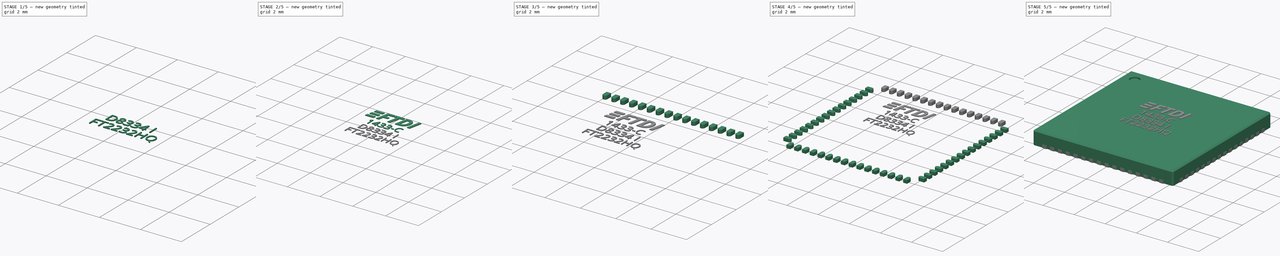
[diagram: build sequence overview — one tinted view per stage of 5, left to right]
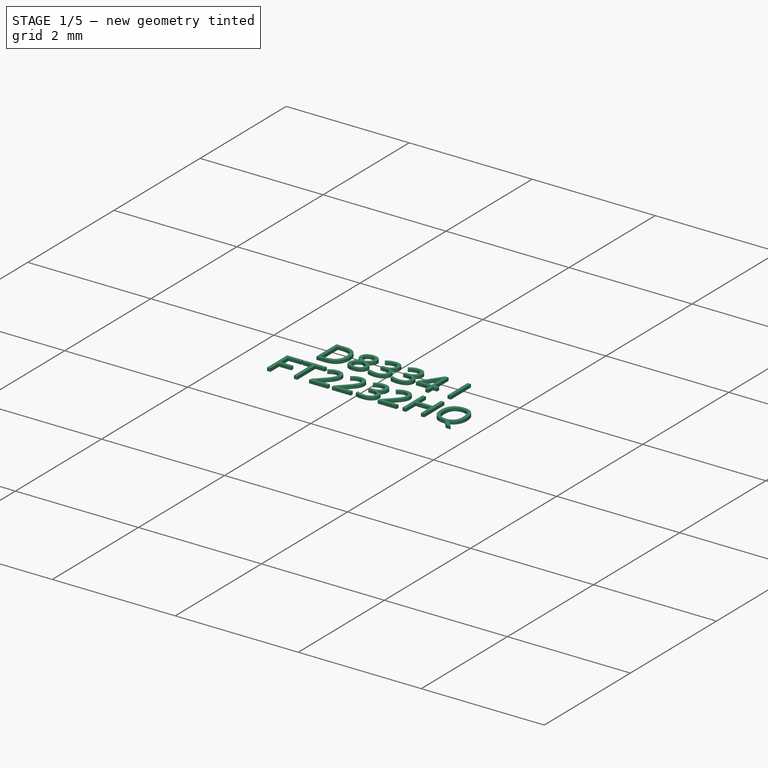
[diagram: stage 1 of 5 — iso view after this stage's code; geometry added in this stage tinted green]
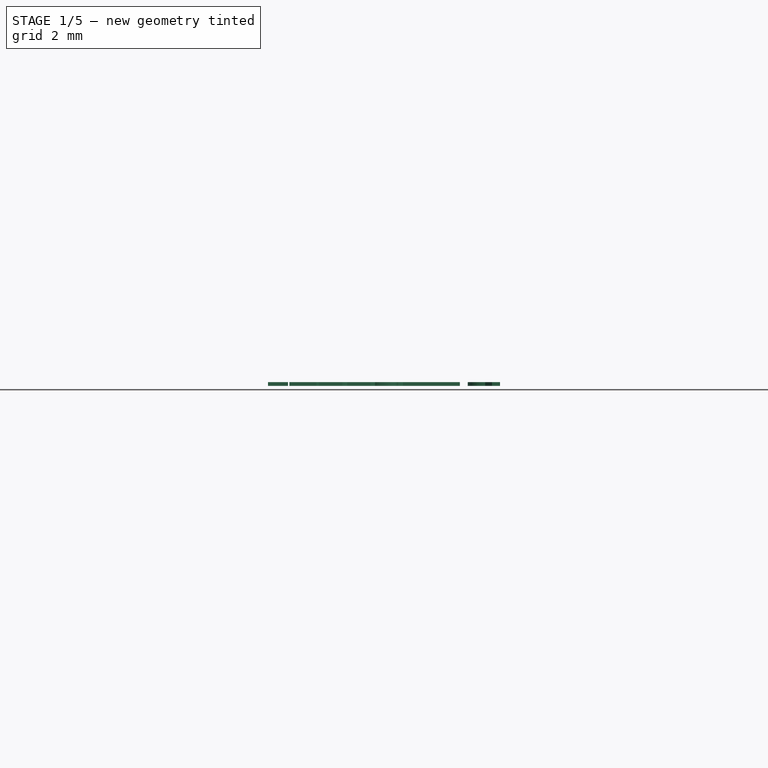
[diagram: stage 1 of 5 — front view after this stage's code; geometry added in this stage tinted green]
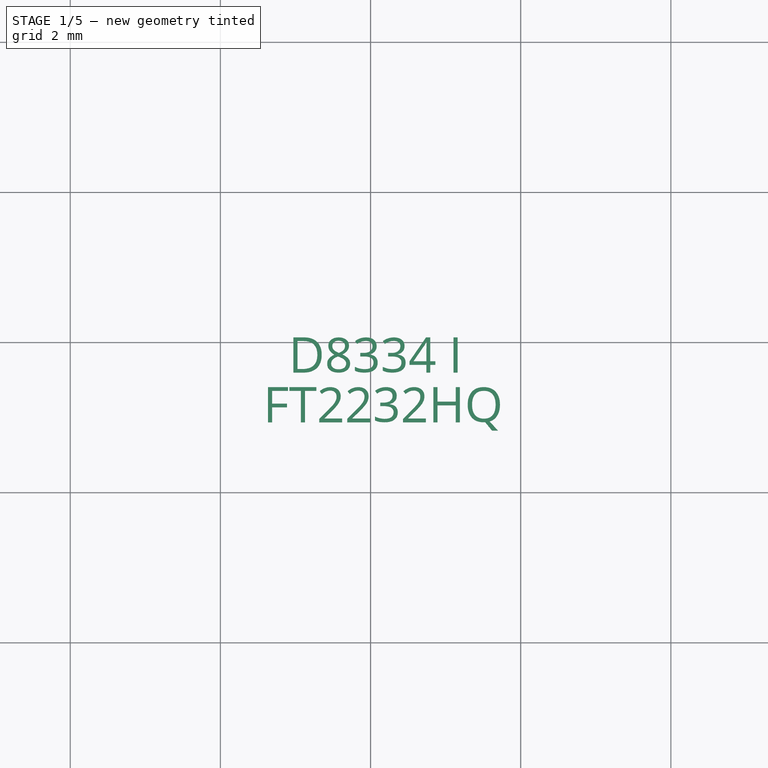
[diagram: stage 1 of 5 — top view after this stage's code; geometry added in this stage tinted green]
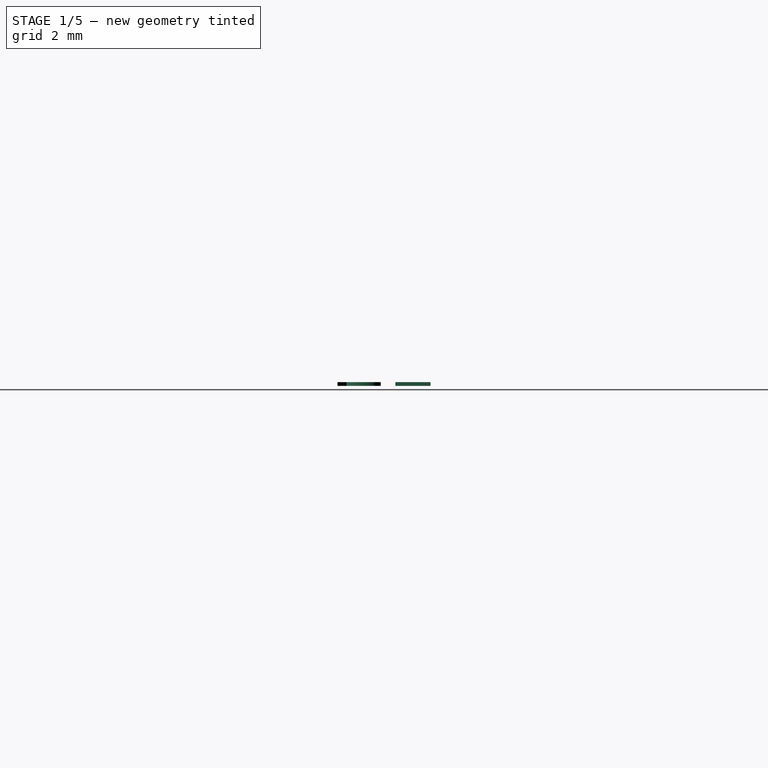
[diagram: stage 1 of 5 — right view after this stage's code; geometry added in this stage tinted green]
FCSTD DOCUMENT  (FreeCAD 0.16R6703 (Git))
Label: FTDI-QFN-64
License: All rights reserved
LicenseURL: http://en.wikipedia.org/wiki/All_rights_reserved
objects: Part::FeaturePython×9, App::DocumentObjectGroup×4, Part::Part2DObjectPython×4, Part::Extrusion×4, Sketcher::SketchObject×3, PartDesign::Pad×2, Part::Mirroring×2, Part::MultiFuse×2, Part::Box×1, Part::Chamfer×1, PartDesign::Pocket×1
note: 32 computed .brp shape members not serialized (recipe doc carries the construction recipe); baked Part::Feature solids carry a one-line shape summary decoded from their .brp

FEATURE [Part::Extrusion] Extrude002  label="line-3"
  Base = -> ShapeString002
  Dir = (0,0,0.05)
  Solid = true
FEATURE [Part::Extrusion] Extrude003  label="line-4"
  Base = -> ShapeString003
  Dir = (0,0,0.05)
  Solid = true
FEATURE [Part::FeaturePython] Clone005  label="text-line3"  # Draft clone (typed FeaturePython)
  Objects = -> [Extrude002]
  Scale = (1,1,1)
FEATURE [Part::FeaturePython] Clone006  label="text-line4"  # Draft clone (typed FeaturePython)
  Objects = -> [Extrude003]
  Scale = (1,1,1)
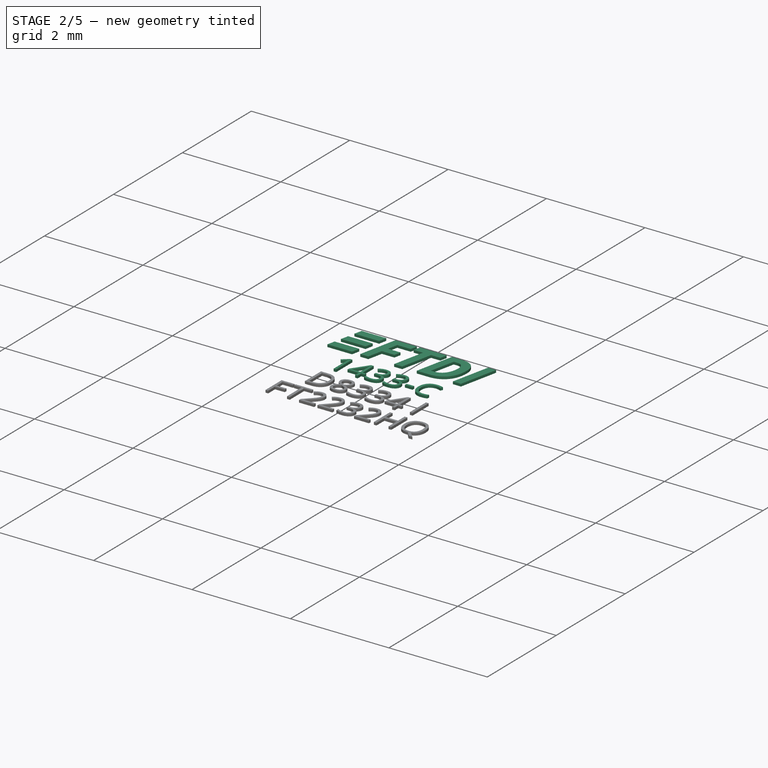
[diagram: stage 2 of 5 — iso view after this stage's code; geometry added in this stage tinted green]
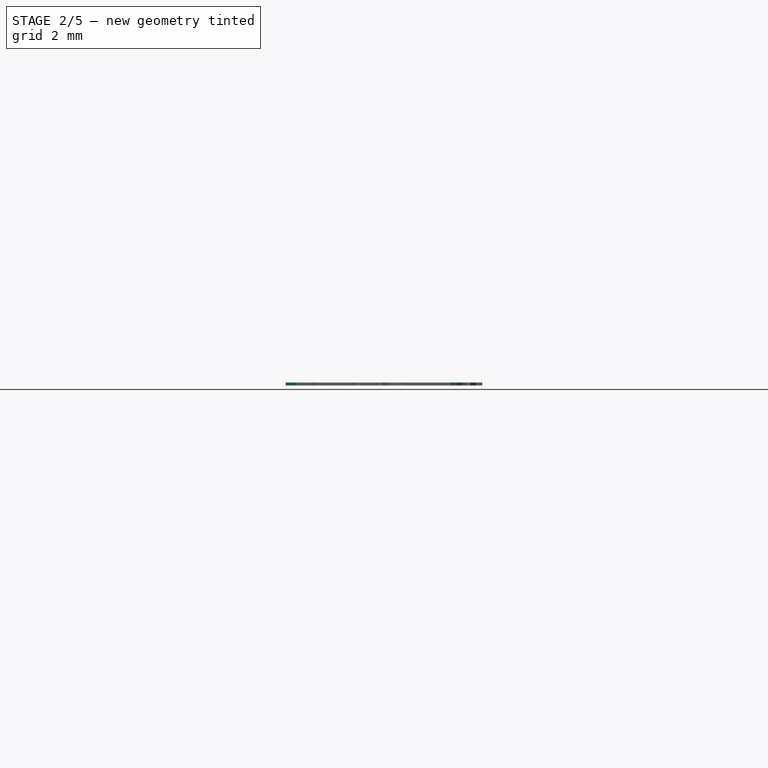
[diagram: stage 2 of 5 — front view after this stage's code; geometry added in this stage tinted green]
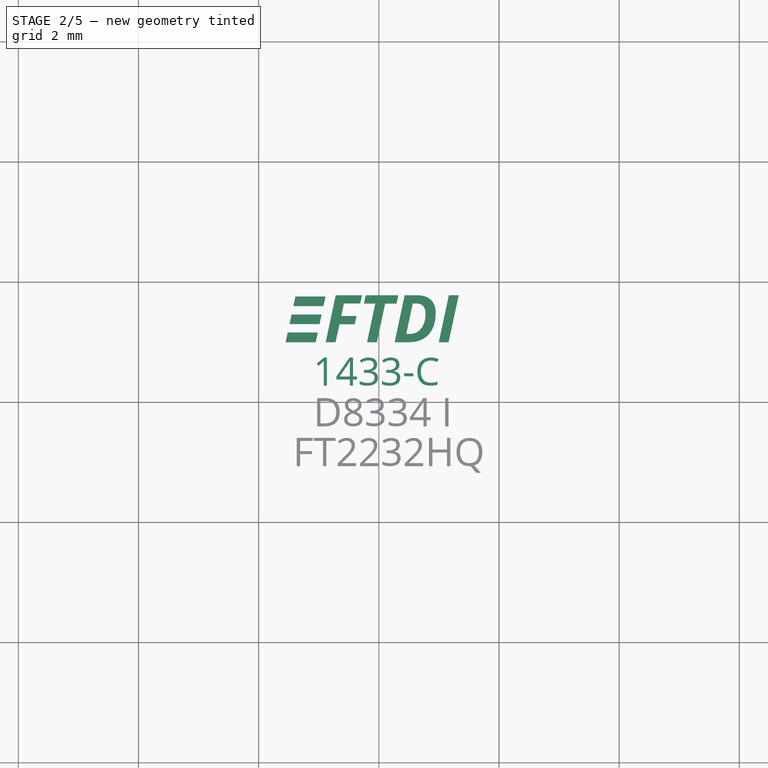
[diagram: stage 2 of 5 — top view after this stage's code; geometry added in this stage tinted green]
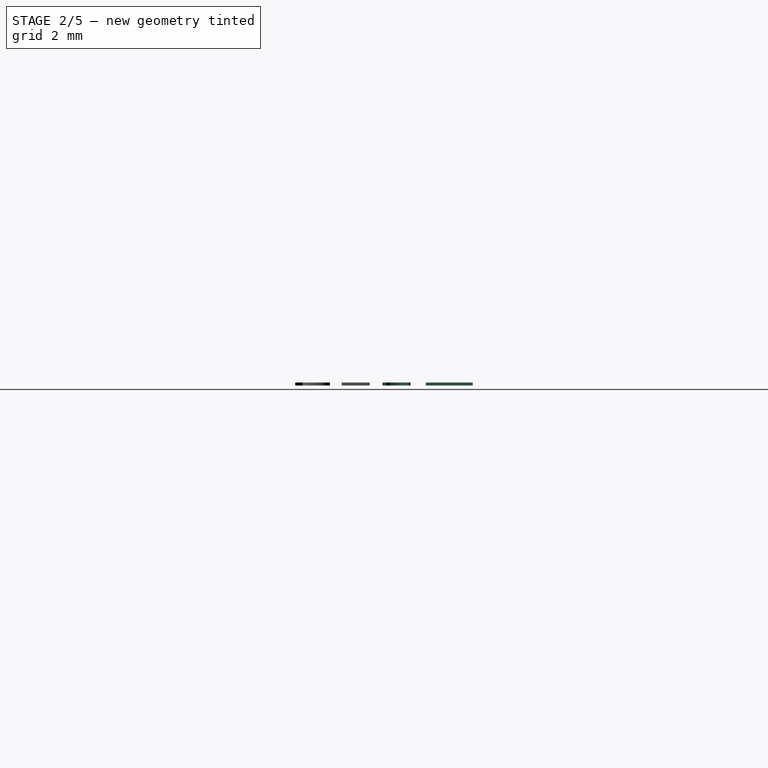
[diagram: stage 2 of 5 — right view after this stage's code; geometry added in this stage tinted green]
FEATURE [Part::Part2DObjectPython] ShapeString  # Draft 2D object (typed FeaturePython)
  FontFile = <userpath>/develop/icezum/src-kicad/packages3d/develop/Open_Sans/OpenSans-BoldItalic.ttf
  Placement = pos=(-2.04393,-0.0134358,0.935001) rot=(0,0,1;0rad)
  Size = 1
  String = FTDI
  Tracking = 0
FEATURE [Part::Extrusion] Extrude  label="ftdi-text"
  Base = -> ShapeString
  Dir = (0,0,0.05)
  Solid = true
FEATURE [Sketcher::SketchObject] Sketch002
  Placement = pos=(-2.68235,-0.0134358,0.935001) rot=(0,0,1;0rad)
  sketch-geometry (15):
    g0: LineSegment [constr] StartX=0 StartY=0 StartZ=0 EndX=0.128629 EndY=0.6 EndZ=0
    g1: LineSegment StartX=0.128629 StartY=0.6 StartZ=0 EndX=0.628629 EndY=0.6 EndZ=0
    g2: LineSegment StartX=0.628629 StartY=0.6 StartZ=0 EndX=0.66293 EndY=0.76 EndZ=0
    g3: LineSegment StartX=0.66293 StartY=0.76 StartZ=0 EndX=0.16293 EndY=0.76 EndZ=0
    g4: LineSegment StartX=0.16293 StartY=0.76 StartZ=0 EndX=0.128629 EndY=0.6 EndZ=0
    g5: LineSegment StartX=0.0986155 StartY=0.46 StartZ=0 EndX=0.598615 EndY=0.46 EndZ=0
    g6: LineSegment StartX=0.598615 StartY=0.46 StartZ=0 EndX=0.564314 EndY=0.3 EndZ=0
    g7: LineSegment StartX=0.564314 StartY=0.3 StartZ=0 EndX=0.0643144 EndY=0.3 EndZ=0
    g8: LineSegment StartX=0.0643144 StartY=0.3 StartZ=0 EndX=0.0986155 EndY=0.46 EndZ=0
    g9: LineSegment StartX=0.034301 StartY=0.16 StartZ=0 EndX=0.534301 EndY=0.16 EndZ=0
    g10: LineSegment StartX=0.534301 StartY=0.16 StartZ=0 EndX=0.5 EndY=0 EndZ=0
    g11: LineSegment StartX=0.5 StartY=0 StartZ=0 EndX=0 EndY=0 EndZ=0
    g12: LineSegment StartX=0 StartY=0 StartZ=0 EndX=0.034301 EndY=0.16 EndZ=0
    g13: LineSegment [constr] StartX=0.128629 StartY=0.6 StartZ=0 EndX=0.128629 EndY=0.46 EndZ=0
    g14: LineSegment [constr] StartX=0.0643144 StartY=0.3 StartZ=0 EndX=0.0643144 EndY=0.16 EndZ=0
  constraints (47):
    c: PointOnObject(g0,g-1)
    c: Angle(g0,g-1) = 1.78198
    c: Horizontal(g1)
    c: Coincident(g1,g2)
    c: Coincident(g2,g3)
    c: Horizontal(g3)
    c: Coincident(g3,g4)
    c: Coincident(g4,g1)
    c: Parallel(g4,g2)
    c: Parallel(g2,g0)
    c: Equal(g1,g3)
    c: DistanceX(g1,g1) = 0.5
    c: DistanceY(g1,g2) = 0.16
    c: Coincident(g0,g-1)
    c: Coincident(g1,g0)
    c: DistanceY(g-1,g3) = 0.76
    c: Horizontal(g5)
    c: Coincident(g5,g6)
    c: Coincident(g6,g7)
    c: Horizontal(g7)
    c: Coincident(g7,g8)
    c: Coincident(g8,g5)
    c: Parallel(g8,g6)
    c: Parallel(g6,g0)
    c: PointOnObject(g5,g0)
    c: Equal(g2,g6)
    c: Equal(g1,g5)
    c: Horizontal(g9)
    c: Coincident(g9,g10)
    c: PointOnObject(g10,g-1)
    c: Coincident(g10,g11)
    c: Horizontal(g11)
    c: Coincident(g11,g12)
    c: Coincident(g12,g9)
    c: Parallel(g12,g10)
    c: Parallel(g10,g0)
    c: Coincident(g11,g-1)
    c: Equal(g9,g7)
    c: Equal(g10,g6)
    c: Vertical(g13)
    c: Coincident(g13,g0)
    c: PointOnObject(g13,g5)
    c: PointOnObject(g14,g7)
    c: Vertical(g14)
    c: PointOnObject(g14,g9)
    c: Equal(g13,g14)
    c: PointOnObject(g14,g0)
FEATURE [PartDesign::Pad] Pad001  label="ftdi-logo"
  Length = 0.05
  Length2 = 100
  Placement = pos=(-2.68235,-0.0134358,0.935001) rot=(0,0,1;0rad)
  Sketch = -> Sketch002
  Type = 0
FEATURE [Part::MultiFuse] Fusion001  label="ftdi"
  Placement = pos=(1.13168,1.01405,0) rot=(0,0,1;0rad)
  Shapes = -> [Extrude,Pad001]
FEATURE [Part::Part2DObjectPython] ShapeString001  # Draft 2D object (typed FeaturePython)
  FontFile = <userpath>/develop/icezum/src-kicad/packages3d/develop/Open_Sans/OpenSans-Regular.ttf
  Placement = pos=(-1.09226,0.276688,0.935001) rot=(0,0,1;0rad)
  Size = 0.6
  String = 1433-C
  Tracking = 0
FEATURE [Part::Part2DObjectPython] ShapeString002  # Draft 2D object (typed FeaturePython)
  FontFile = <userpath>/develop/icezum/src-kicad/packages3d/develop/Open_Sans/OpenSans-Regular.ttf
  Placement = pos=(-1.09226,-0.400051,0.935001) rot=(0,0,1;0rad)
  Size = 0.6
  String = D8334 I
  Tracking = 0
FEATURE [Part::Part2DObjectPython] ShapeString003  # Draft 2D object (typed FeaturePython)
  FontFile = <userpath>/develop/icezum/src-kicad/packages3d/develop/Open_Sans/OpenSans-Regular.ttf
  Placement = pos=(-1.43063,-1.06208,0.935001) rot=(0,0,1;0rad)
  Size = 0.6
  String = FT2232HQ
  Tracking = 0
FEATURE [Part::Extrusion] Extrude001  label="line-2"
  Base = -> ShapeString001
  Dir = (0,0,0.05)
  Solid = true
FEATURE [App::DocumentObjectGroup] Group003  label="text-src"
  Group = -> [Fusion001,Extrude001,Extrude002,Extrude003]
FEATURE [App::DocumentObjectGroup] Group  label="src"
  Group = -> [Group001,Group002,Group003]
FEATURE [Part::FeaturePython] Clone004  label="text-line2"  # Draft clone (typed FeaturePython)
  Objects = -> [Extrude001]
  Scale = (1,1,1)
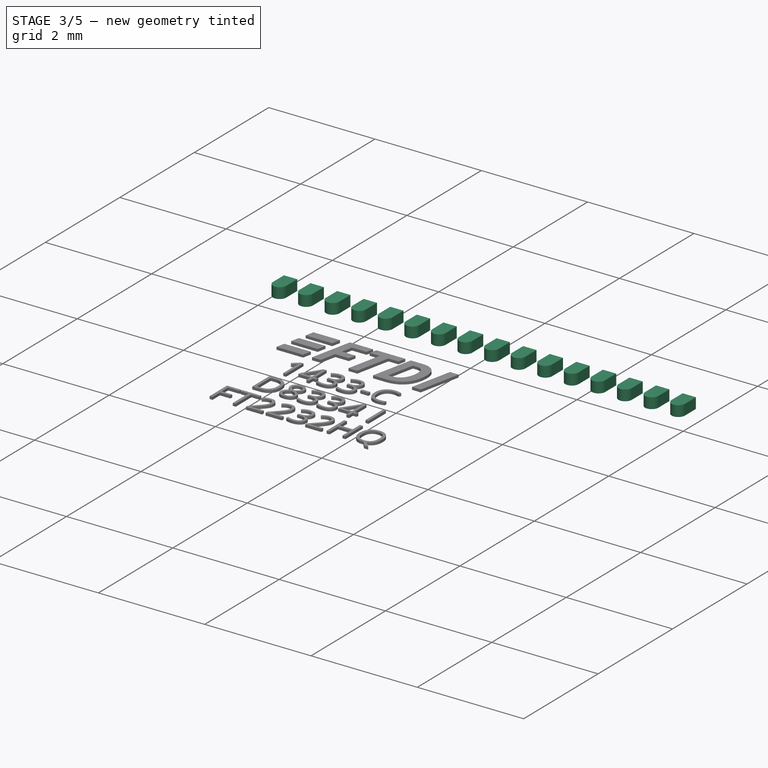
[diagram: stage 3 of 5 — iso view after this stage's code; geometry added in this stage tinted green]
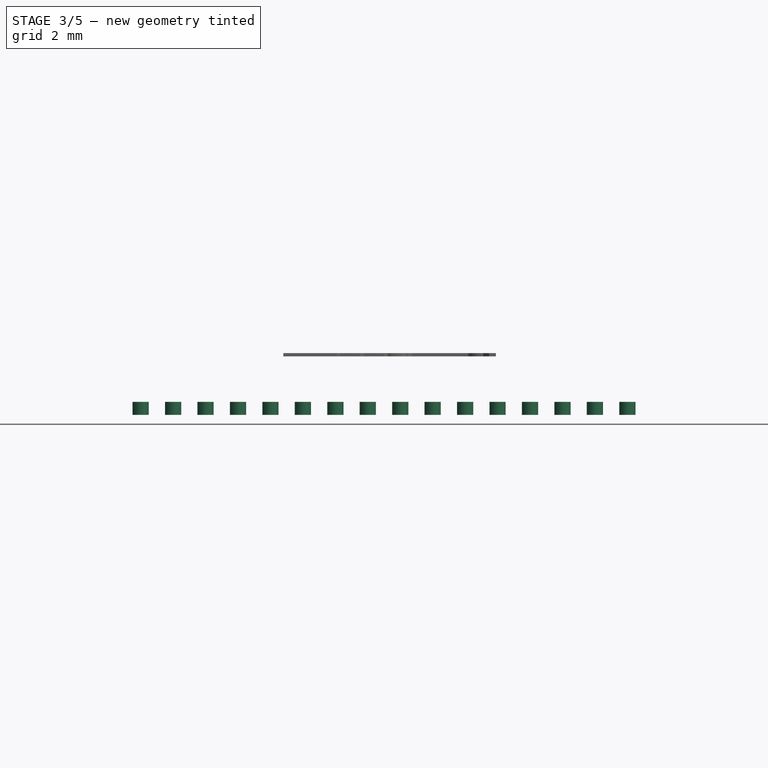
[diagram: stage 3 of 5 — front view after this stage's code; geometry added in this stage tinted green]
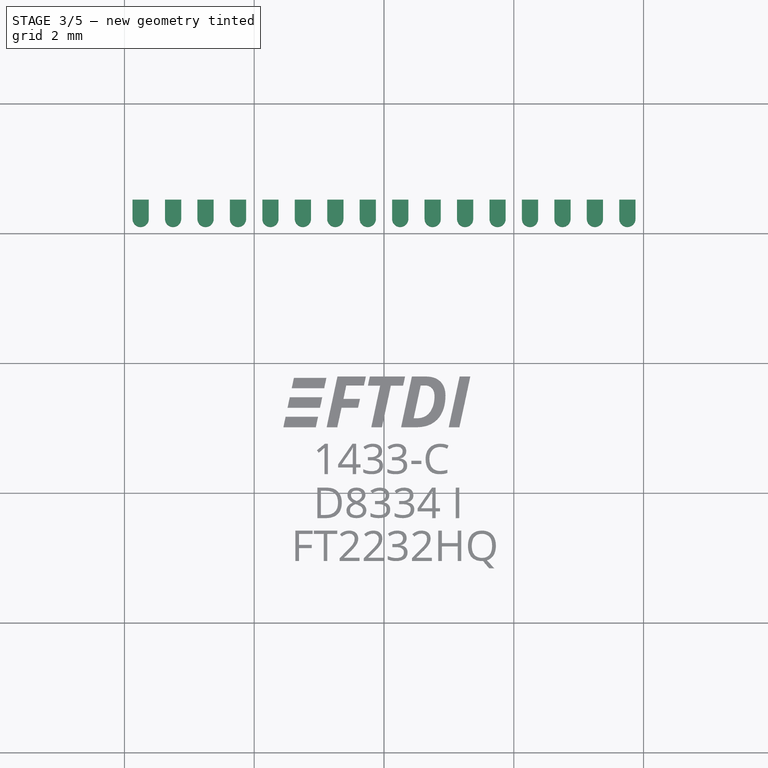
[diagram: stage 3 of 5 — top view after this stage's code; geometry added in this stage tinted green]
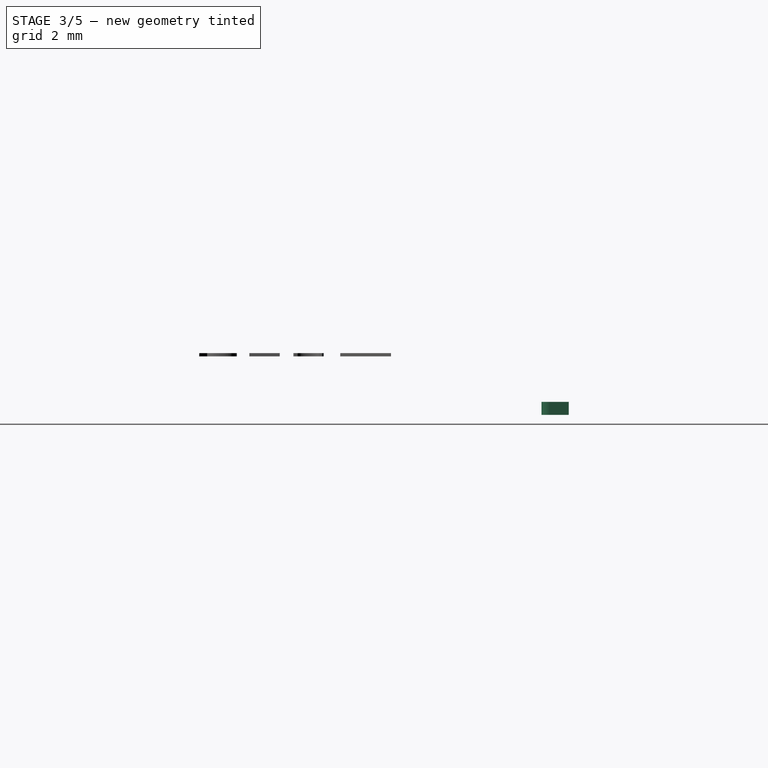
[diagram: stage 3 of 5 — right view after this stage's code; geometry added in this stage tinted green]
FEATURE [Sketcher::SketchObject] Sketch001
  Placement = pos=(4.52,-3.625,0.0350014) rot=(0,0,1;0rad)
  sketch-geometry (5):
    g0: LineSegment StartX=0 StartY=0 StartZ=0 EndX=-0.295 EndY=0 EndZ=0
    g1: LineSegment [constr] StartX=-0.295 StartY=0 StartZ=0 EndX=-0.295 EndY=-0.25 EndZ=0
    g2: LineSegment StartX=-0.295 StartY=-0.25 StartZ=0 EndX=0 EndY=-0.25 EndZ=0
    g3: LineSegment StartX=0 StartY=-0.25 StartZ=0 EndX=0 EndY=0 EndZ=0
    g4: ArcOfCircle CenterX=-0.295 CenterY=-0.125 CenterZ=0 NormalX=0 NormalY=0 NormalZ=1 Radius=0.125 StartAngle=1.5708 EndAngle=4.71239
  constraints (14):
    c: Coincident(g0,g1)
    c: Coincident(g1,g2)
    c: Coincident(g2,g3)
    c: Coincident(g3,g0)
    c: Horizontal(g0)
    c: Horizontal(g2)
    c: Vertical(g1)
    c: Vertical(g3)
    c: PointOnObject(g4,g1)
    c: Coincident(g4,g1)
    c: Coincident(g4,g0)
    c: Coincident(g0,g-1)
    c: DistanceY(g3,g3) = 0.25
    c: DistanceX(g2,g2) = 0.295
FEATURE [PartDesign::Pad] Pad  label="Pad-src"
  Length = 0.2
  Length2 = 100
  Placement = pos=(4.52,-3.625,0.0350014) rot=(0,0,1;0rad)
  Sketch = -> Sketch001
  Type = 0
FEATURE [Part::FeaturePython] Clone001  label="padh"  # Draft clone (typed FeaturePython)
  Objects = -> [Pad]
  Placement = pos=(-3.875,4.52,0.035001) rot=(0,0,1;1.5708rad)
  Scale = (1,1,1)
FEATURE [Part::FeaturePython] Array001  label="pads-top"  # Draft array (typed FeaturePython)
  Angle = 360
  ArrayType = 0
  Axis = (0,0,1)
  Base = -> Clone001
  Center = (0,0,0)
  Fuse = false
  IntervalAxis = (0,0,0)
  IntervalX = (0.5,0,0)
  IntervalY = (0,1,0)
  IntervalZ = (0,0,0)
  NumberPolar = 1
  NumberX = 16
  NumberY = 1
  NumberZ = 1
FEATURE [Part::FeaturePython] Clone003  label="text-ftdi"  # Draft clone (typed FeaturePython)
  Objects = -> [Fusion001]
  Placement = pos=(1.13168,1.01405,0) rot=(0,0,1;0rad)
  Scale = (1,1,1)
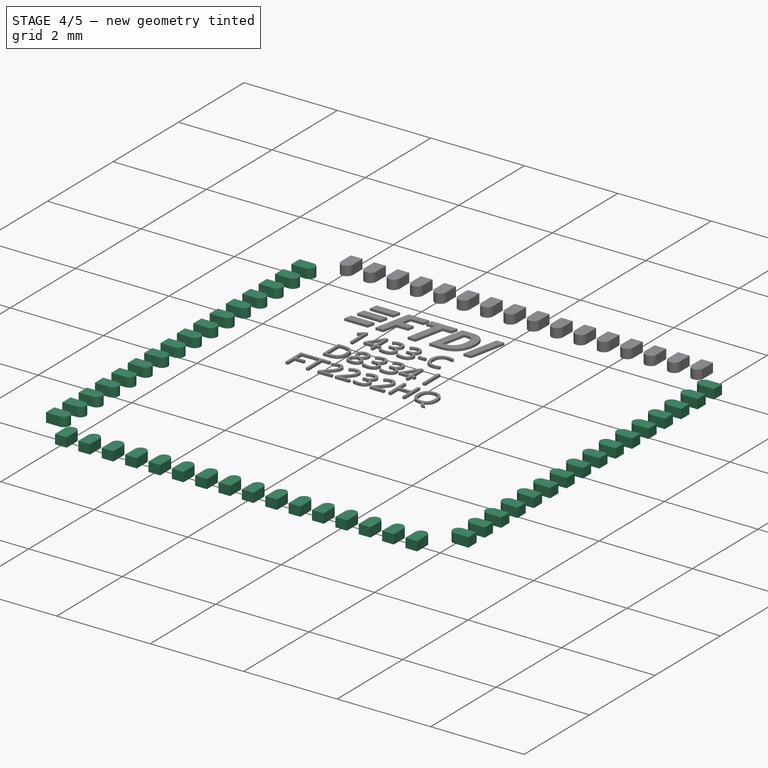
[diagram: stage 4 of 5 — iso view after this stage's code; geometry added in this stage tinted green]
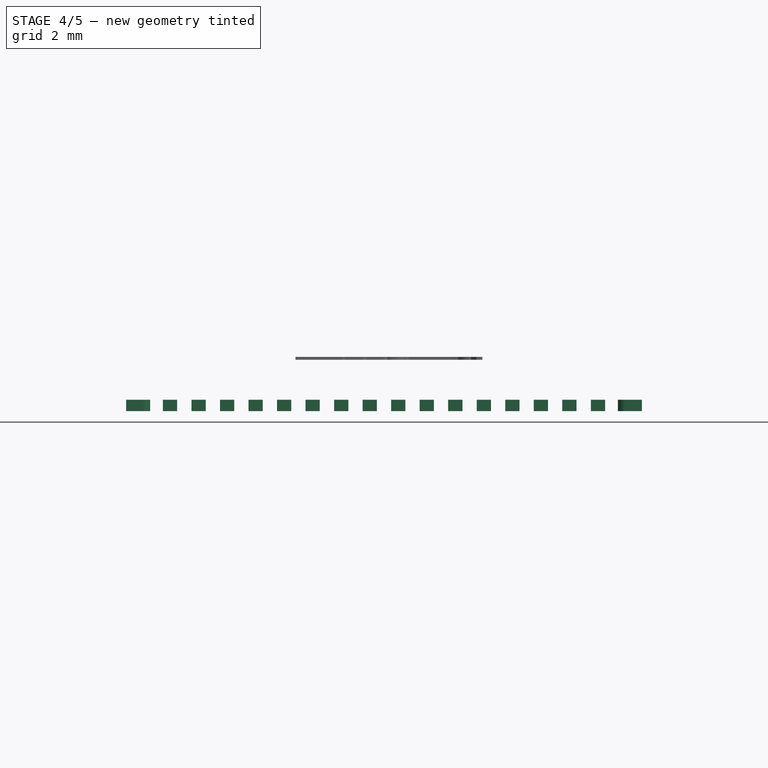
[diagram: stage 4 of 5 — front view after this stage's code; geometry added in this stage tinted green]
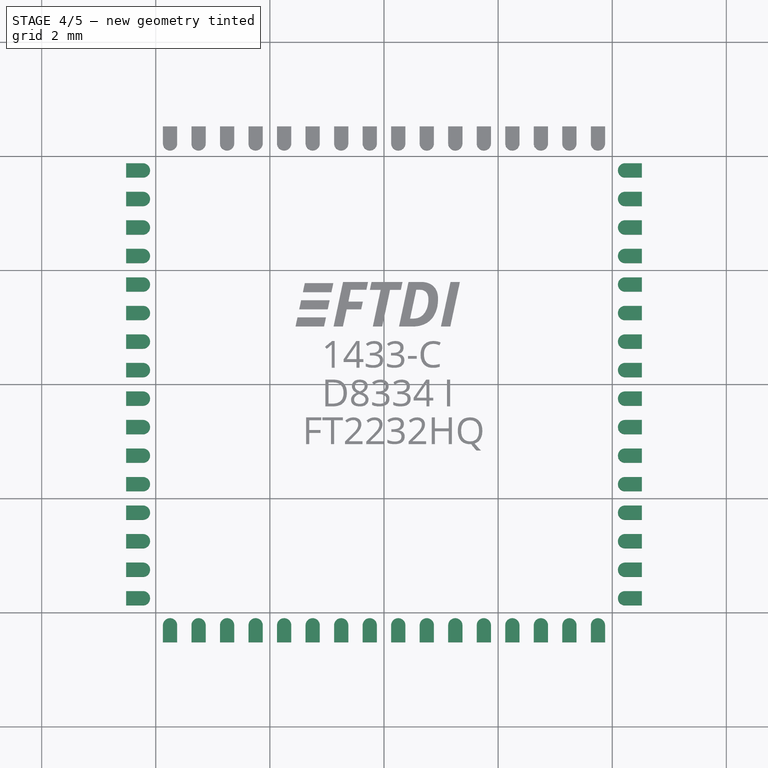
[diagram: stage 4 of 5 — top view after this stage's code; geometry added in this stage tinted green]
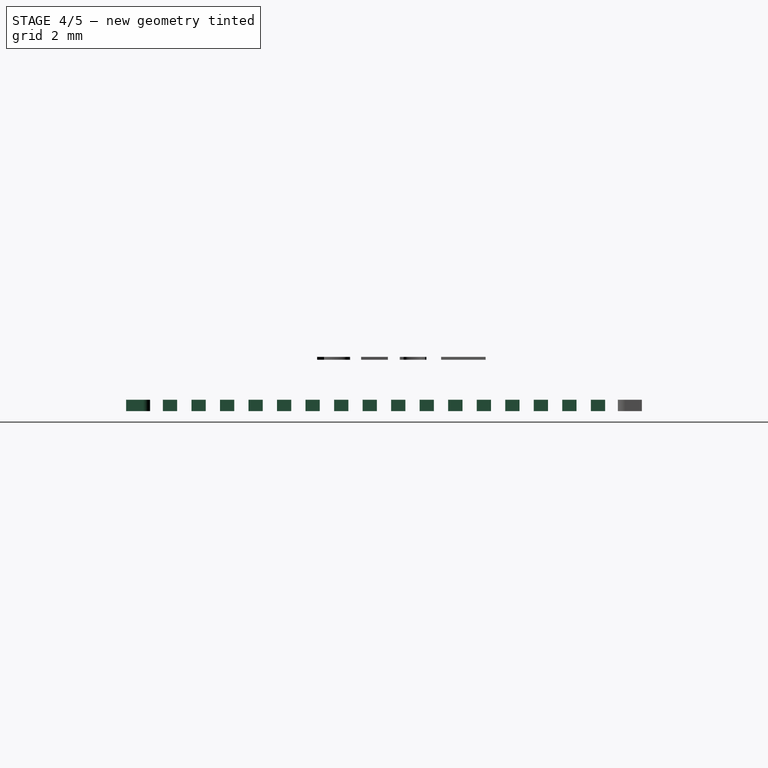
[diagram: stage 4 of 5 — right view after this stage's code; geometry added in this stage tinted green]
FEATURE [Part::FeaturePython] Array  label="pads-right"  # Draft array (typed FeaturePython)
  Angle = 360
  ArrayType = 0
  Axis = (0,0,1)
  Base = -> Pad
  Center = (0,0,0)
  Fuse = false
  IntervalAxis = (0,0,0)
  IntervalX = (1,0,0)
  IntervalY = (0,0.5,0)
  IntervalZ = (0,0,0)
  NumberPolar = 1
  NumberX = 1
  NumberY = 16
  NumberZ = 1
FEATURE [Part::Mirroring] Part__Mirroring  label="pads-right (Mirror #1)"
  Base = (2.9802e-08,5.391e-08,0.135001)
  Normal = (1,0,-1.19209e-07)
  Source = -> Array
FEATURE [Part::Mirroring] Part__Mirroring001  label="pads-top (Mirror #2)"
  Base = (0,0,0)
  Normal = (0,1,0)
  Source = -> Array001
FEATURE [Part::MultiFuse] Fusion  label="pads-final"
  Shapes = -> [Part__Mirroring,Array,Array001,Part__Mirroring001]
FEATURE [App::DocumentObjectGroup] Group002  label="pads-src"
  Group = -> [Fusion]
FEATURE [Part::FeaturePython] Clone002  label="pads"  # Draft clone (typed FeaturePython)
  Objects = -> [Fusion]
  Scale = (1,1,1)
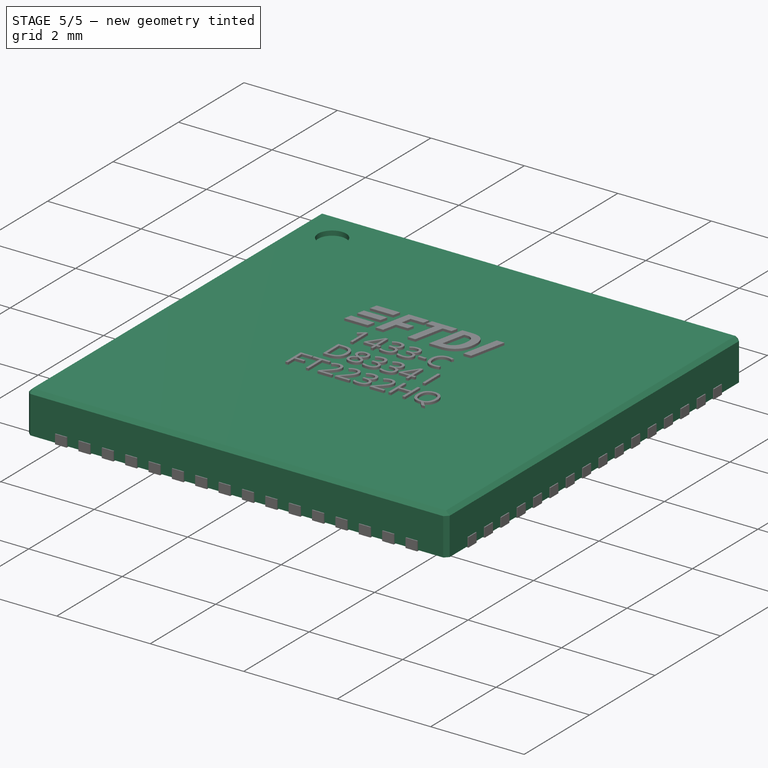
[diagram: stage 5 of 5 — iso view after this stage's code; geometry added in this stage tinted green]
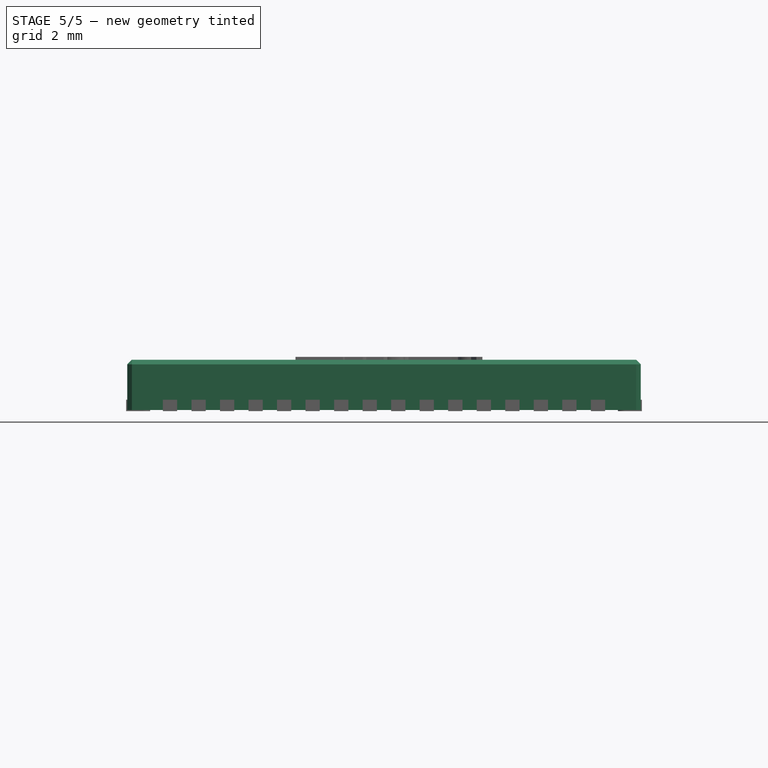
[diagram: stage 5 of 5 — front view after this stage's code; geometry added in this stage tinted green]
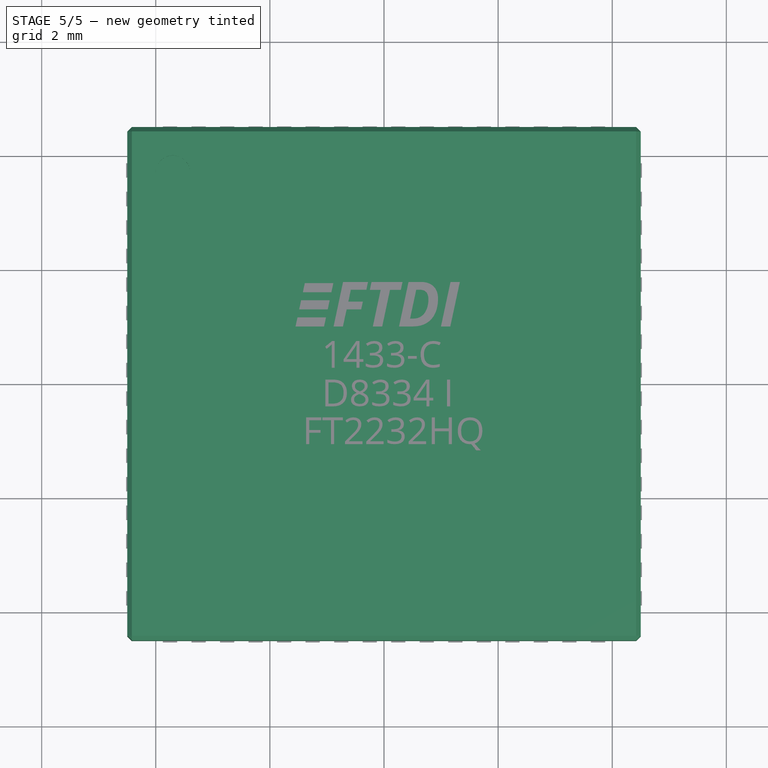
[diagram: stage 5 of 5 — top view after this stage's code; geometry added in this stage tinted green]
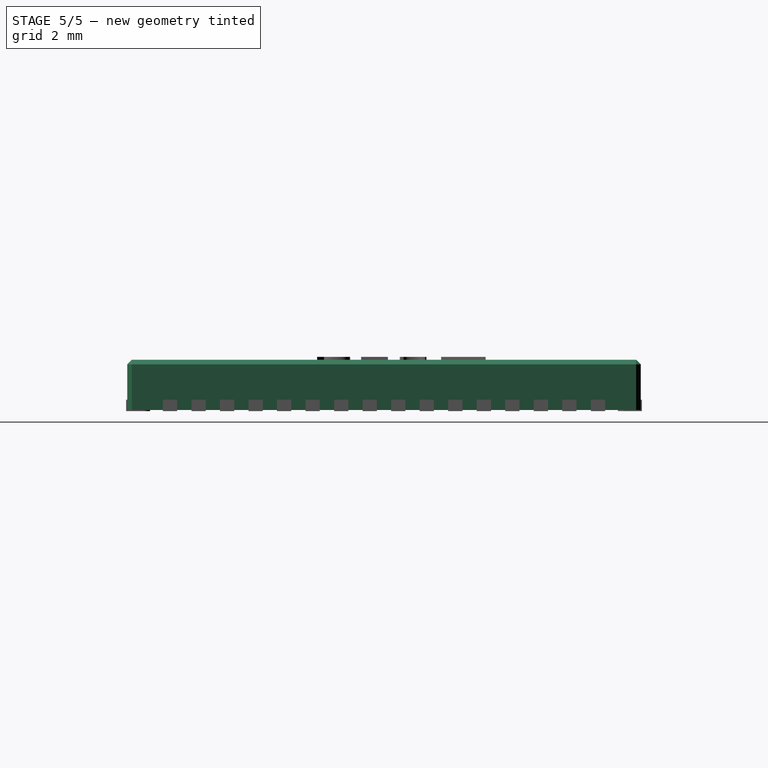
[diagram: stage 5 of 5 — right view after this stage's code; geometry added in this stage tinted green]
FEATURE [Part::Box] Box  label="body-src-1"
  Height = 0.88
  Length = 9
  Placement = pos=(-4.5,-4.5,0.0550012) rot=(0,0,1;0rad)
  Width = 9
FEATURE [Part::Chamfer] Chamfer  label="body-src-2"
  Base = -> Box
  Edges = 8 edges r=0.08: [Edge1,Edge2,Edge3,Edge5,Edge6,Edge7,Edge10,Edge12]
FEATURE [Sketcher::SketchObject] Sketch
  Placement = pos=(0,0,0.935001) rot=(0,0,1;0rad)
  Support = -> Chamfer [Face13]
  sketch-geometry (1):
    g0: Circle CenterX=-3.7 CenterY=3.7 CenterZ=0 NormalX=0 NormalY=0 NormalZ=1 Radius=0.3
  constraints (3):
    c: Radius(g0) = 0.3
    c: DistanceX(g0,g-1) = 3.7
    c: DistanceY(g-1,g0) = 3.7
FEATURE [PartDesign::Pocket] Pocket  label="body-src-3"
  Length = 0.1
  Sketch = -> Sketch
  Type = 0
FEATURE [App::DocumentObjectGroup] Group001  label="body-src"
  Group = -> [Chamfer,Box,Pocket]
FEATURE [Part::FeaturePython] Clone  label="body"  # Draft clone (typed FeaturePython)
  Objects = -> [Pocket]
  Scale = (1,1,1)
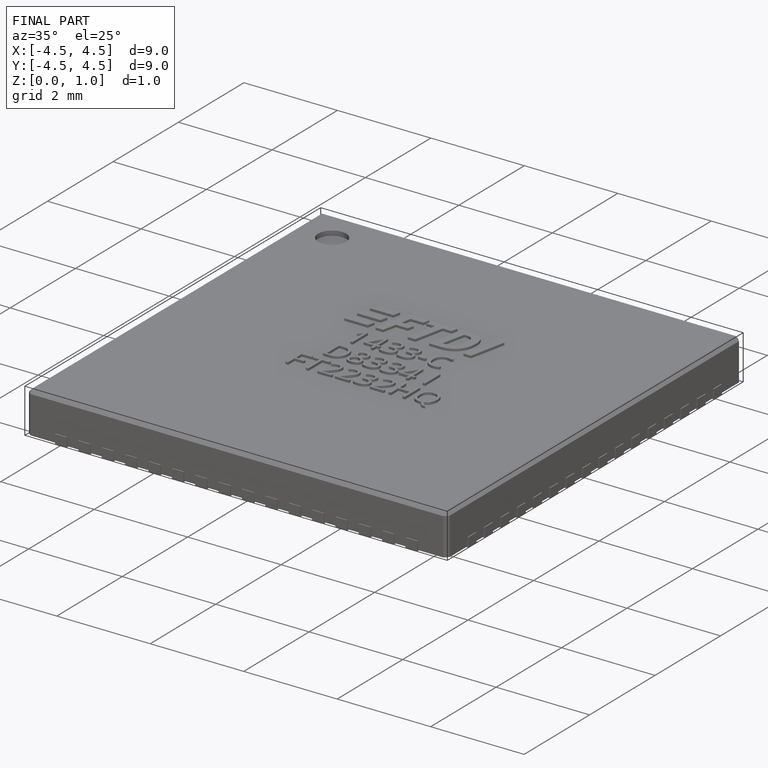
[diagram: finished part — iso view with bounding-box wireframe]
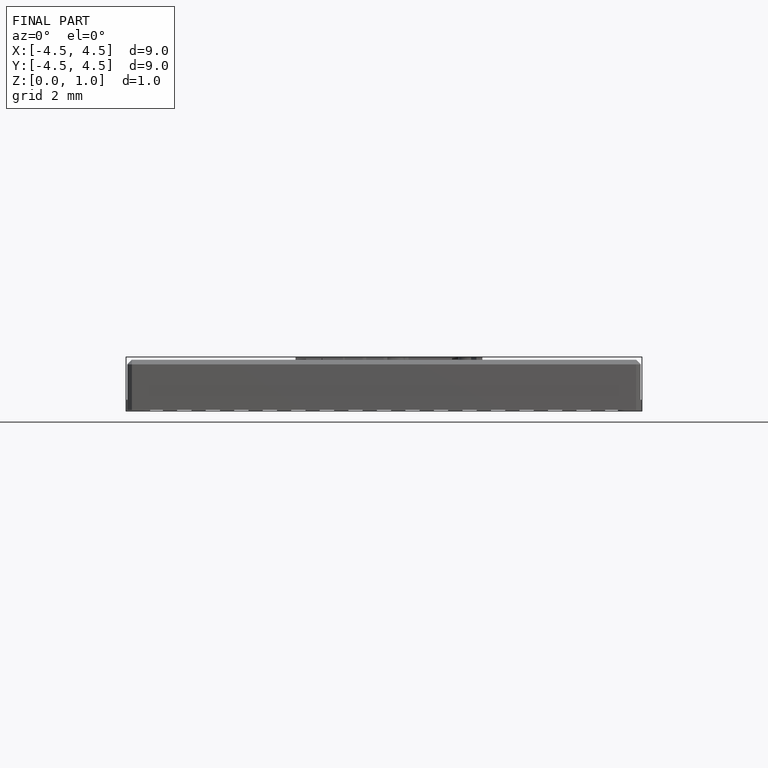
[diagram: finished part — front view with bounding-box wireframe]
